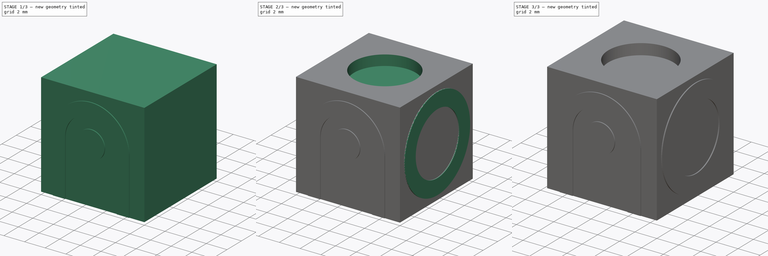
[diagram: build sequence overview — one tinted view per stage of 3, left to right]
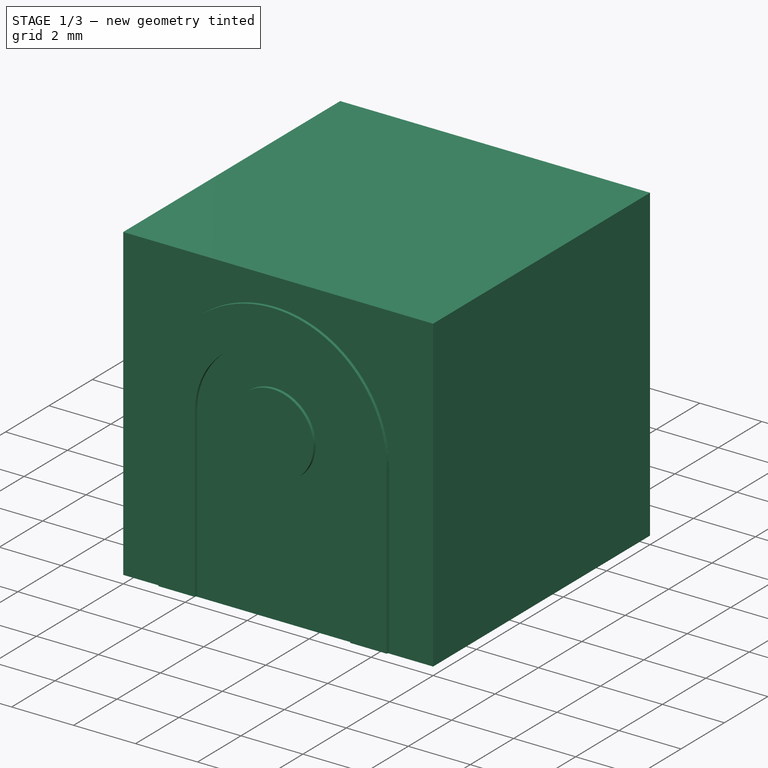
[diagram: stage 1 of 3 — iso view after this stage's code; geometry added in this stage tinted green]
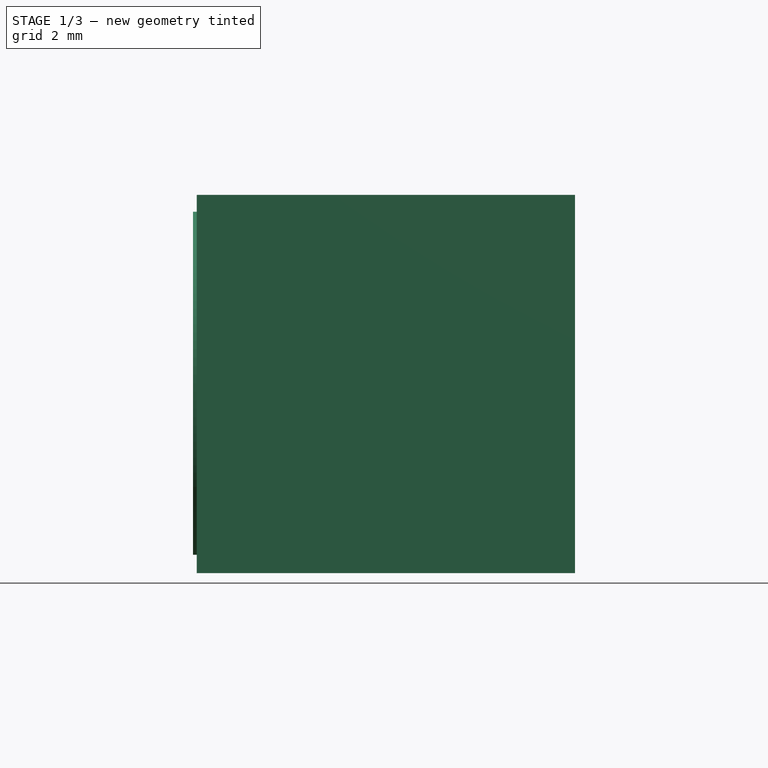
[diagram: stage 1 of 3 — front view after this stage's code; geometry added in this stage tinted green]
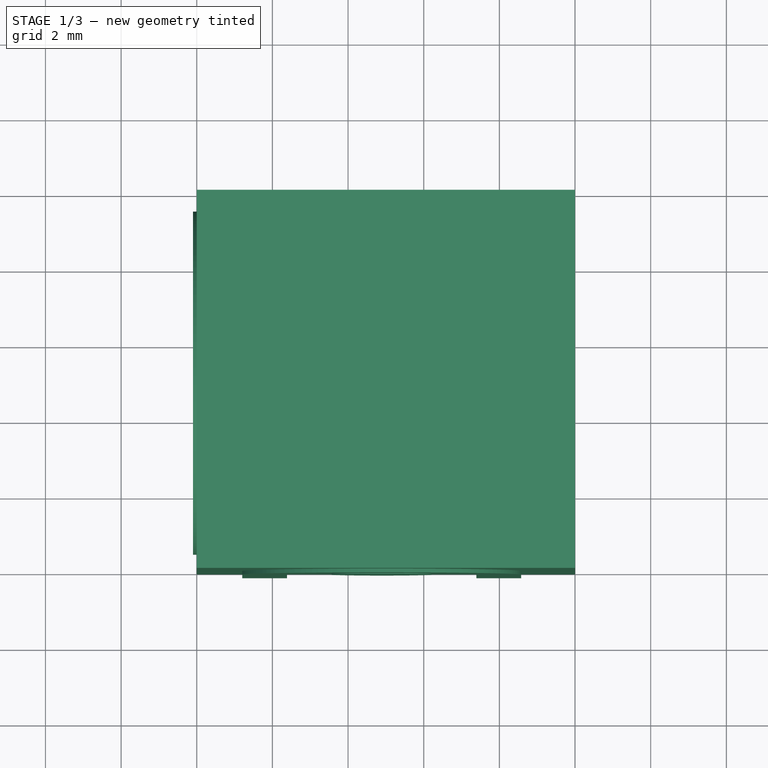
[diagram: stage 1 of 3 — top view after this stage's code; geometry added in this stage tinted green]
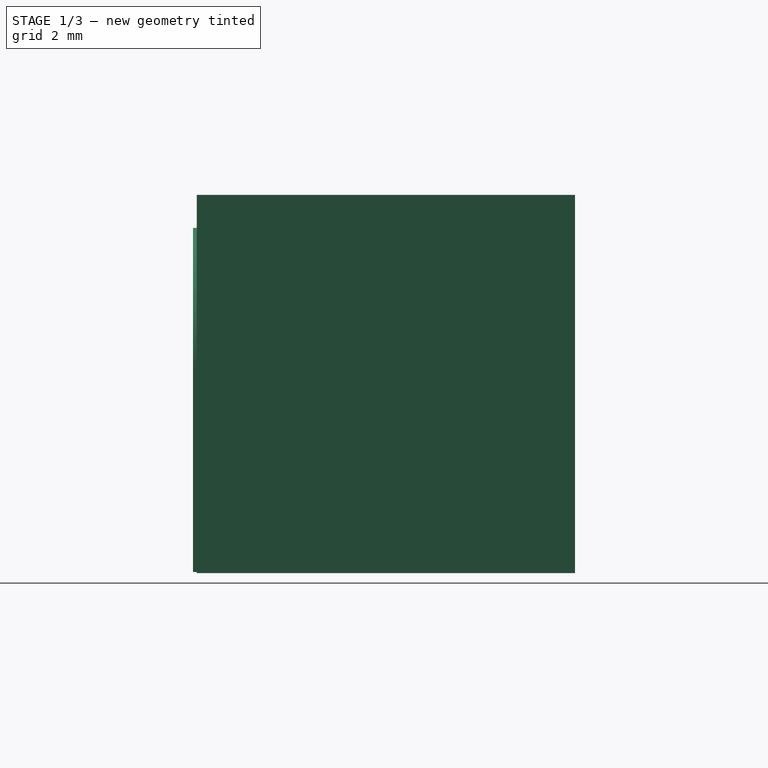
[diagram: stage 1 of 3 — right view after this stage's code; geometry added in this stage tinted green]
FCSTD DOCUMENT  (FreeCAD 0.16R6706 (Git))
Label: doortem-second
License: All rights reserved
LicenseURL: http://en.wikipedia.org/wiki/All_rights_reserved
objects: Sketcher::SketchObject×6, PartDesign::Pad×4, PartDesign::Pocket×2, Part::Box×1, PartDesign::Chamfer×1
note: 20 computed .brp shape members not serialized (recipe doc carries the construction recipe); baked Part::Feature solids carry a one-line shape summary decoded from their .brp

FEATURE [Part::Box] Box  label="Cube"
  Height = 10
  Length = 10
  Width = 10
FEATURE [Sketcher::SketchObject] Sketch  label="Nose"
  Placement = pos=(0,0,0) rot=(1,0,0;1.5708rad)
  Support = -> Box [Face3]
  sketch-geometry (9):
    g0: ArcOfCircle CenterX=4.88988 CenterY=5.44156 CenterZ=0 NormalX=0 NormalY=0 NormalZ=1 Radius=3.68659 StartAngle=0 EndAngle=3.14159
    g1: LineSegment StartX=1.20329 StartY=5.44156 StartZ=0 EndX=1.20329 EndY=0.0318496 EndZ=0
    g2: LineSegment StartX=8.57646 StartY=5.44156 StartZ=0 EndX=8.57646 EndY=0.0318496 EndZ=0
    g3: ArcOfCircle CenterX=4.88988 CenterY=5.44156 CenterZ=0 NormalX=0 NormalY=0 NormalZ=1 Radius=2.50364 StartAngle=0 EndAngle=3.14159
    g4: LineSegment StartX=2.38624 StartY=5.44156 StartZ=0 EndX=2.38624 EndY=0.0318496 EndZ=0
    g5: LineSegment StartX=7.39352 StartY=5.44156 StartZ=0 EndX=7.39352 EndY=0.0318496 EndZ=0
    g6: Circle CenterX=4.88988 CenterY=5.44156 CenterZ=0 NormalX=0 NormalY=0 NormalZ=1 Radius=1.31994
    g7: LineSegment StartX=1.20329 StartY=0.0318496 StartZ=0 EndX=2.38624 EndY=0.0318496 EndZ=0
    g8: LineSegment StartX=7.39352 StartY=0.0318496 StartZ=0 EndX=8.57646 EndY=0.0318496 EndZ=0
  constraints (17):
    c: Tangent(g0,g2) = 1.5708
    c: Tangent(g0,g1) = -1.5708
    c: Vertical(g1)
    c: Vertical(g2)
    c: Tangent(g3,g5) = 1.5708
    c: Tangent(g3,g4) = -1.5708
    c: Vertical(g4)
    c: Coincident(g3,g0)
    c: Coincident(g6,g0)
    c: Coincident(g7,g1)
    c: Coincident(g7,g4)
    c: Coincident(g8,g5)
    c: Coincident(g8,g2)
    c: Parallel(g7,g8)
    c: Horizontal(g7)
    c: Equal(g7,g8)
    c: Equal(g4,g5)
FEATURE [PartDesign::Pad] Pad
  Length = 0.1
  Length2 = 100
  Sketch = -> Sketch
  Type = 0
FEATURE [Sketcher::SketchObject] Sketch001  label="Side A"
  Placement = pos=(0,0,0) rot=(0.57735,-0.57735,-0.57735;2.0944rad)
  Support = -> Pad [Face1]
  sketch-geometry (2):
    g0: Circle CenterX=-4.9706 CenterY=5.02028 CenterZ=0 NormalX=0 NormalY=0 NormalZ=1 Radius=4.53604
    g1: Circle CenterX=-4.9706 CenterY=5.02028 CenterZ=0 NormalX=0 NormalY=0 NormalZ=1 Radius=2.9847
  constraints (1):
    c: Coincident(g1,g0)
FEATURE [PartDesign::Pad] Pad001
  Length = 0.1
  Length2 = 100
  Sketch = -> Sketch001
  Type = 0
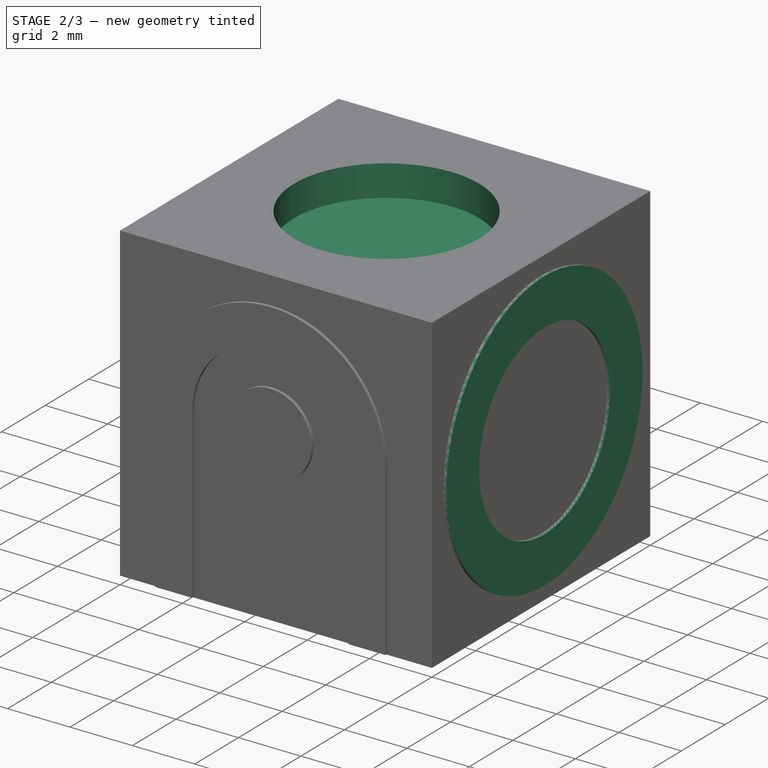
[diagram: stage 2 of 3 — iso view after this stage's code; geometry added in this stage tinted green]
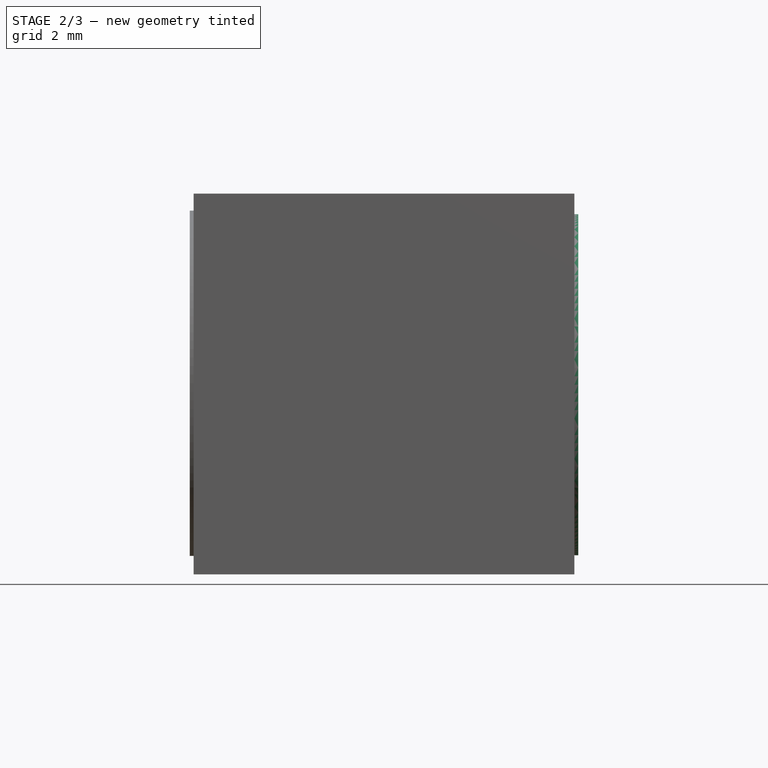
[diagram: stage 2 of 3 — front view after this stage's code; geometry added in this stage tinted green]
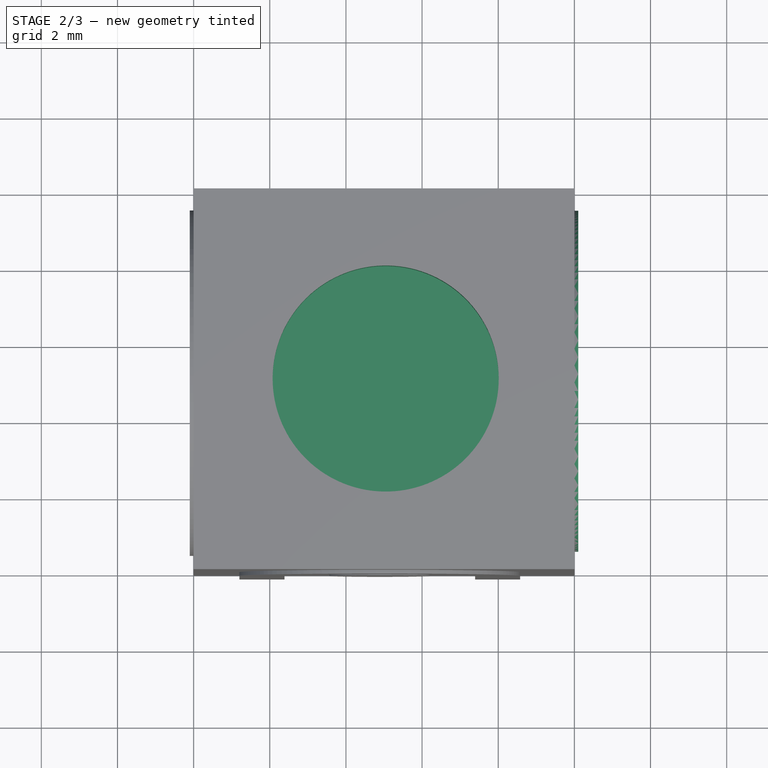
[diagram: stage 2 of 3 — top view after this stage's code; geometry added in this stage tinted green]
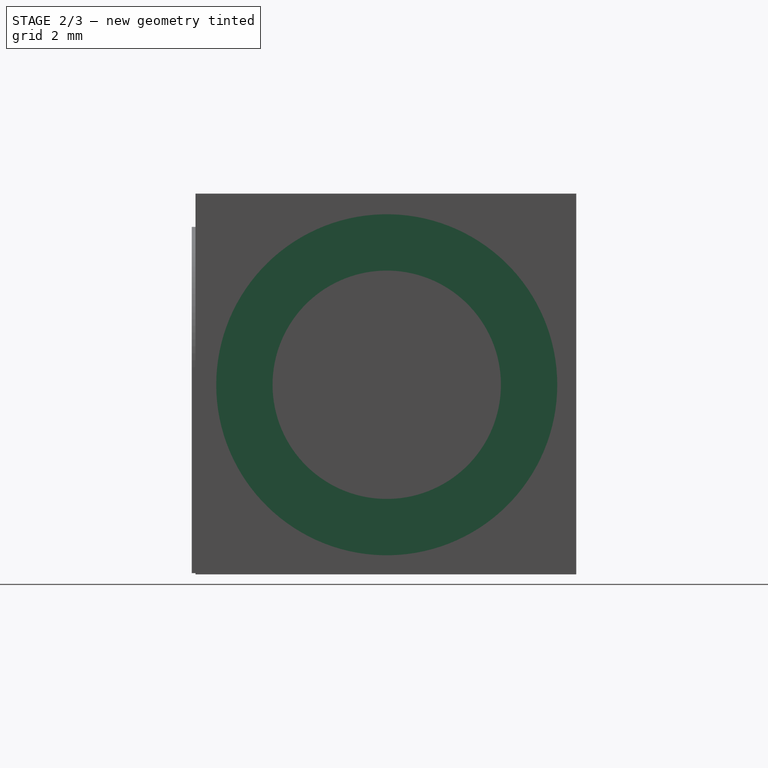
[diagram: stage 2 of 3 — right view after this stage's code; geometry added in this stage tinted green]
FEATURE [Sketcher::SketchObject] Sketch002  label="Side B"
  Placement = pos=(10,0,0) rot=(0.57735,0.57735,0.57735;2.0944rad)
  Support = -> Pad001 [Face3]
  sketch-geometry (2):
    g0: Circle CenterX=5.0218 CenterY=4.98006 CenterZ=0 NormalX=0 NormalY=0 NormalZ=1 Radius=4.4784
    g1: Circle CenterX=5.0218 CenterY=4.98006 CenterZ=0 NormalX=0 NormalY=0 NormalZ=1 Radius=2.99881
  constraints (1):
    c: Coincident(g1,g0)
FEATURE [PartDesign::Pad] Pad002
  Length = 0.1
  Length2 = 100
  Sketch = -> Sketch002
  Type = 0
FEATURE [Sketcher::SketchObject] Sketch004  label="Socket"
  Placement = pos=(0,0,10) rot=(0,0,1;0rad)
  Support = -> Pad002 [Face5]
  sketch-geometry (1):
    g0: Circle CenterX=5.04397 CenterY=5.00656 CenterZ=0 NormalX=0 NormalY=0 NormalZ=1 Radius=2.96922
FEATURE [PartDesign::Pocket] Pocket
  Length = 1
  Sketch = -> Sketch004
  Type = 0
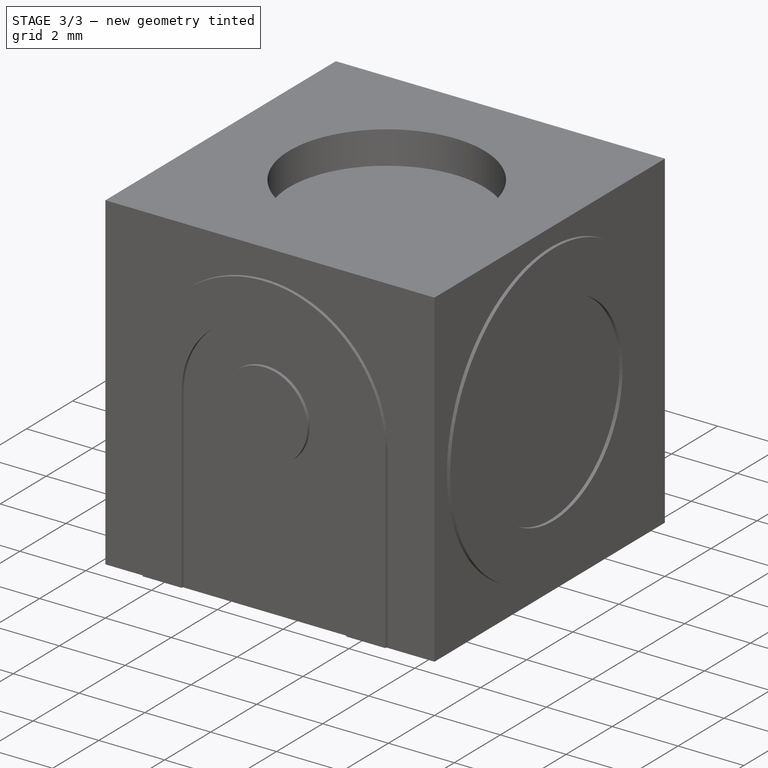
[diagram: stage 3 of 3 — iso view after this stage's code; geometry added in this stage tinted green]
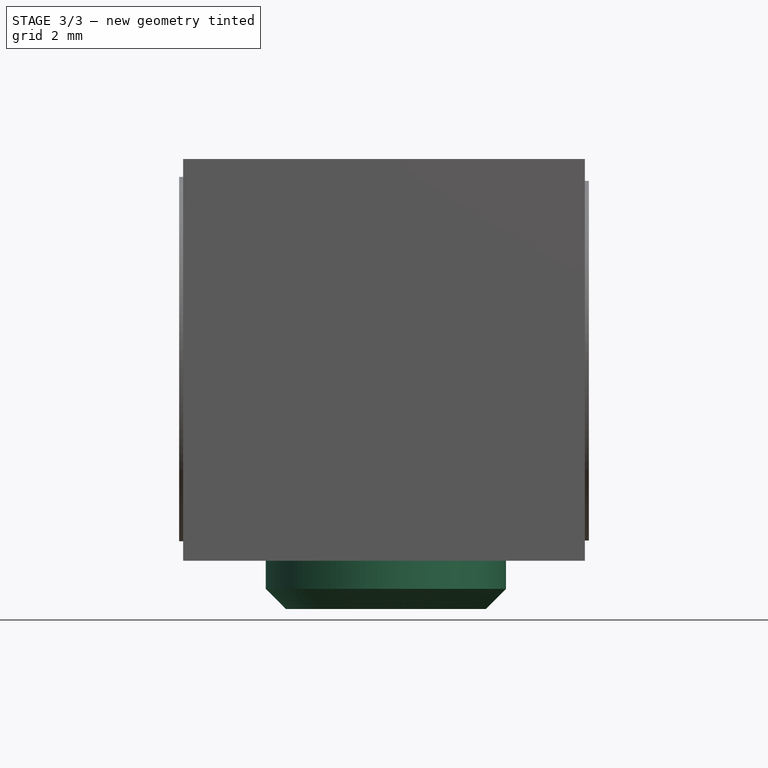
[diagram: stage 3 of 3 — front view after this stage's code; geometry added in this stage tinted green]
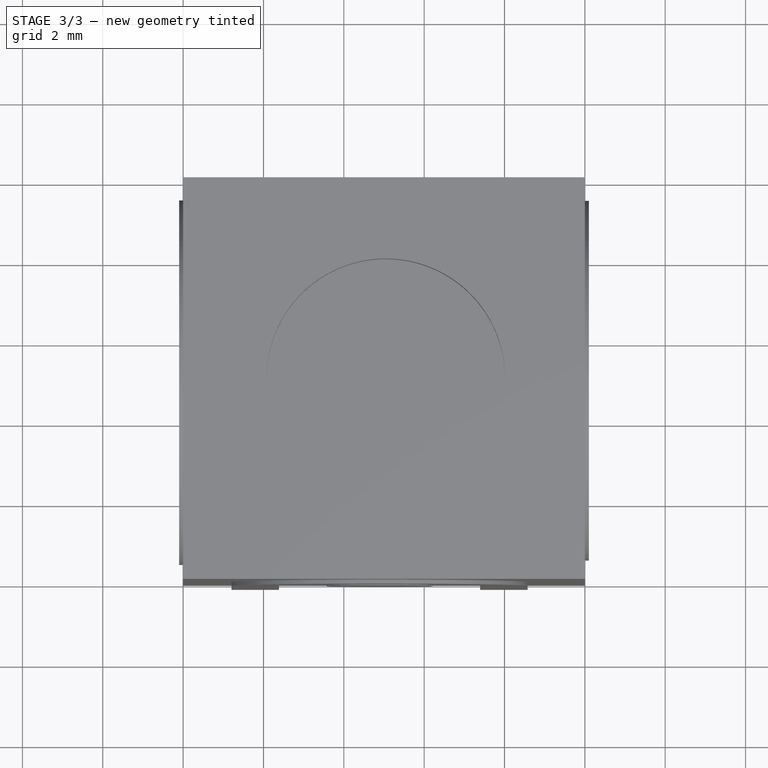
[diagram: stage 3 of 3 — top view after this stage's code; geometry added in this stage tinted green]
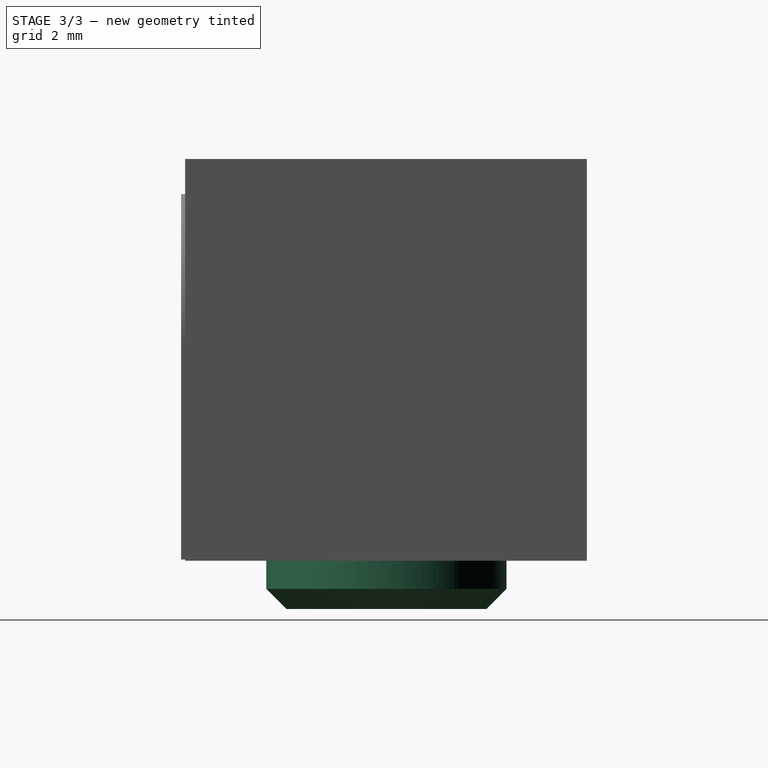
[diagram: stage 3 of 3 — right view after this stage's code; geometry added in this stage tinted green]
FEATURE [Sketcher::SketchObject] Sketch005
  Placement = pos=(0,10,0) rot=(0,0.707107,0.707107;3.14159rad)
  Support = -> Pocket [Face15]
  sketch-geometry (28):
    g0: LineSegment StartX=-9.91367 StartY=9.96267 StartZ=0 EndX=-9.91367 EndY=4.97867 EndZ=0
    g1: LineSegment StartX=-6.18658 StartY=0 StartZ=0 EndX=-4.94422 EndY=0 EndZ=0
    g2: LineSegment StartX=-8.6713 StartY=5.81124 StartZ=0 EndX=-8.6713 EndY=9.96267 EndZ=0
    g3: LineSegment StartX=-8.6713 StartY=9.96267 StartZ=0 EndX=-9.91367 EndY=9.96267 EndZ=0
    g4: LineSegment StartX=-7.42894 StartY=9.96267 StartZ=0 EndX=-7.42894 EndY=7.2755 EndZ=0
    g5: LineSegment StartX=-6.18658 StartY=8.25375 StartZ=0 EndX=-6.18658 EndY=9.96267 EndZ=0
    g6: LineSegment StartX=-6.18658 StartY=9.96267 StartZ=0 EndX=-7.42894 EndY=9.96267 EndZ=0
    g7: LineSegment StartX=-8.6713 StartY=0 StartZ=0 EndX=-8.6713 EndY=2.80713 EndZ=0
    g8: LineSegment StartX=-7.42894 StartY=0 StartZ=0 EndX=-8.6713 EndY=0 EndZ=0
    g9: LineSegment StartX=-3.70185 StartY=8.25375 StartZ=0 EndX=-3.70185 EndY=9.96267 EndZ=0
    g10: LineSegment StartX=-3.70185 StartY=9.96267 StartZ=0 EndX=-2.45949 EndY=9.96267 EndZ=0
    g11: LineSegment StartX=-2.45949 StartY=9.96267 StartZ=0 EndX=-2.45949 EndY=7.2755 EndZ=0
    g12: LineSegment StartX=-4.94422 StartY=0 StartZ=0 EndX=-3.70185 EndY=0 EndZ=0
    g13: LineSegment StartX=0.025236 StartY=4.97867 StartZ=0 EndX=0.025236 EndY=9.96267 EndZ=0
    g14: LineSegment StartX=0.025236 StartY=9.96267 StartZ=0 EndX=-1.21713 EndY=9.96267 EndZ=0
    g15: LineSegment StartX=-1.21713 StartY=9.96267 StartZ=0 EndX=-1.21713 EndY=5.81124 EndZ=0
    g16: LineSegment StartX=-1.21713 StartY=2.80713 StartZ=0 EndX=-1.21713 EndY=0 EndZ=0
    g17: LineSegment StartX=-1.21713 StartY=0 StartZ=0 EndX=-2.45949 EndY=0 EndZ=0
    g18: ArcOfCircle CenterX=-11.598 CenterY=-0.166618 CenterZ=0 NormalX=0 NormalY=0 NormalZ=1 Radius=4.17236 StartAngle=0.0399444 EndAngle=0.793378
    g19: ArcOfCircle CenterX=-11.598 CenterY=-0.166618 CenterZ=0 NormalX=0 NormalY=0 NormalZ=1 Radius=5.41395 StartAngle=0.0307805 EndAngle=1.25444
    g20: ArcOfCircle CenterX=-11.598 CenterY=-0.166618 CenterZ=0 NormalX=0 NormalY=0 NormalZ=1 Radius=6.65584 StartAngle=0.025036 EndAngle=1.11552
    g21: ArcOfCircle CenterX=-11.598 CenterY=-0.166618 CenterZ=0 NormalX=0 NormalY=0 NormalZ=1 Radius=8.5303 StartAngle=0.676108 EndAngle=1.06016
    g22: ArcOfCircle CenterX=-11.598 CenterY=-0.166618 CenterZ=0 NormalX=0 NormalY=0 NormalZ=1 Radius=10.0093 StartAngle=0.843626 EndAngle=0.999602
    g23: ArcOfCircle CenterX=1.70954 CenterY=-0.166618 CenterZ=0 NormalX=0 NormalY=0 NormalZ=1 Radius=4.17236 StartAngle=2.34821 EndAngle=3.10165
    g24: ArcOfCircle CenterX=1.70954 CenterY=-0.166618 CenterZ=0 NormalX=0 NormalY=0 NormalZ=1 Radius=5.41395 StartAngle=1.88715 EndAngle=3.11081
    g25: ArcOfCircle CenterX=1.70954 CenterY=-0.166618 CenterZ=0 NormalX=0 NormalY=0 NormalZ=1 Radius=6.65584 StartAngle=2.02608 EndAngle=3.11656
    g26: ArcOfCircle CenterX=1.70954 CenterY=-0.166618 CenterZ=0 NormalX=0 NormalY=0 NormalZ=1 Radius=8.5303 StartAngle=2.08143 EndAngle=2.46548
    g27: ArcOfCircle CenterX=1.70954 CenterY=-0.166618 CenterZ=0 NormalX=0 NormalY=0 NormalZ=1 Radius=10.0093 StartAngle=2.14199 EndAngle=2.29797
  constraints (79):
    c: Vertical(g0)
    c: Vertical(g2)
    c: Coincident(g2,g3)
    c: Coincident(g3,g0)
    c: Coincident(g5,g6)
    c: Coincident(g6,g4)
    c: Horizontal(g6)
    c: PointOnObject(g7,g-1)
    c: PointOnObject(g8,g-1)
    c: Coincident(g8,g7)
    c: Horizontal(g3)
    c: Horizontal(g1)
    c: Vertical(g7)
    c: DistanceX(g2,g7) = 0
    c: DistanceX(g4,g8) = 0
    c: DistanceX(g21,g1) = 0
    c: Vertical(g5)
    c: Equal(g3,g8)
    c: Equal(g6,g3)
    c: Equal(g8,g1)
    c: Vertical(g4)
    c: DistanceX(g22,g21) = 0
    c: Vertical(g9)
    c: Coincident(g9,g10)
    c: Horizontal(g10)
    c: Coincident(g10,g11)
    c: PointOnObject(g12,g-1)
    c: Horizontal(g12)
    c: Vertical(g13)
    c: Coincident(g13,g14)
    c: Coincident(g14,g15)
    c: Vertical(g15)
    c: Coincident(g16,g17)
    c: Equal(g17,g8)
    c: Vertical(g11)
    c: Vertical(g16)
    c: DistanceY(g16,g7) = 0
    c: DistanceX(g10,g17) = 0
    c: Horizontal(g14)
    c: DistanceX(g16,g14) = 0
    c: Equal(g14,g17)
    c: Equal(g10,g17)
    c: DistanceY(g1,g17) = 0
    c: Horizontal(g17)
    c: Equal(g12,g1)
    c: DistanceY(g9,g5) = 0
    c: Coincident(g18,g7)
    c: Coincident(g18,g8)
    c: Coincident(g19,g0)
    c: Coincident(g19,g1)
    c: Coincident(g20,g2)
    c: Coincident(g20,g1)
    c: Coincident(g19,g20)
    c: Coincident(g21,g4)
    c: Coincident(g21,g19)
    c: Coincident(g22,g5)
    c: Coincident(g22,g19)
    c: DistanceY(g1,g12) = 0
    c: DistanceX(g5,g1) = 0
    c: Coincident(g23,g17)
    c: Coincident(g23,g16)
    c: Coincident(g24,g12)
    c: Coincident(g24,g13)
    c: Coincident(g25,g12)
    c: Coincident(g25,g15)
    c: Coincident(g25,g23)
    c: Coincident(g26,g21)
    c: Coincident(g26,g11)
    c: Coincident(g27,g22)
    c: Coincident(g27,g9)
    c: Coincident(g23,g26)
    c: Coincident(g23,g27)
    c: DistanceY(g18,g23) = 0
    c: DistanceY(g9,g5) = 0
    c: Coincident(g18,g19)
    c: Coincident(g23,g24)
    c: DistanceY(g13,g0) = 0
    c: DistanceY(g10,g14) = 0
    c: DistanceY(g2,g4) = 0
FEATURE [PartDesign::Pocket] Pocket001
  Length = 0.1
  Sketch = -> Sketch005
  Type = 0
FEATURE [Sketcher::SketchObject] Sketch006
  Placement = pos=(0,0,0) rot=(1,0,0;3.14159rad)
  Support = -> Pocket001 [Face2]
  sketch-geometry (1):
    g0: Circle CenterX=5.04584 CenterY=-5.00938 CenterZ=0 NormalX=0 NormalY=0 NormalZ=1 Radius=2.99058
FEATURE [PartDesign::Pad] Pad003
  Length = 1.2
  Length2 = 100
  Sketch = -> Sketch006
  Type = 0
FEATURE [PartDesign::Chamfer] Chamfer
  Base = -> Pad003 [Edge101]
  Size = 0.5
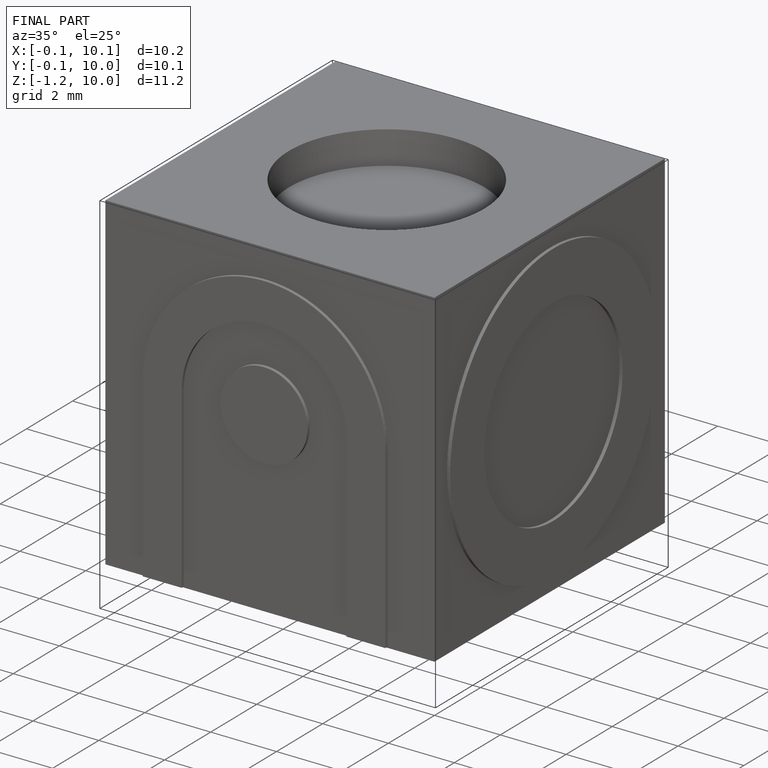
[diagram: finished part — iso view with bounding-box wireframe]
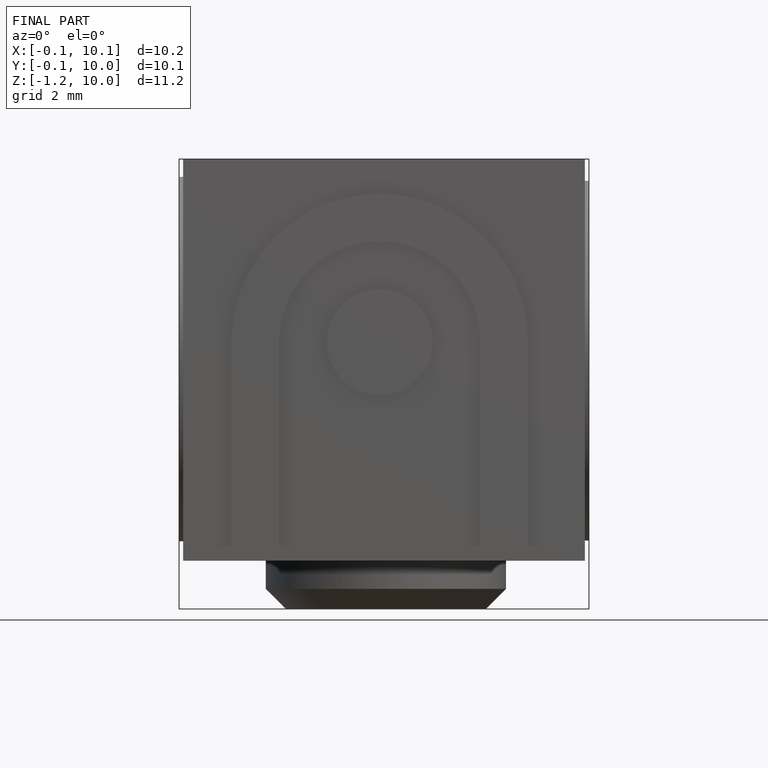
[diagram: finished part — front view with bounding-box wireframe]
